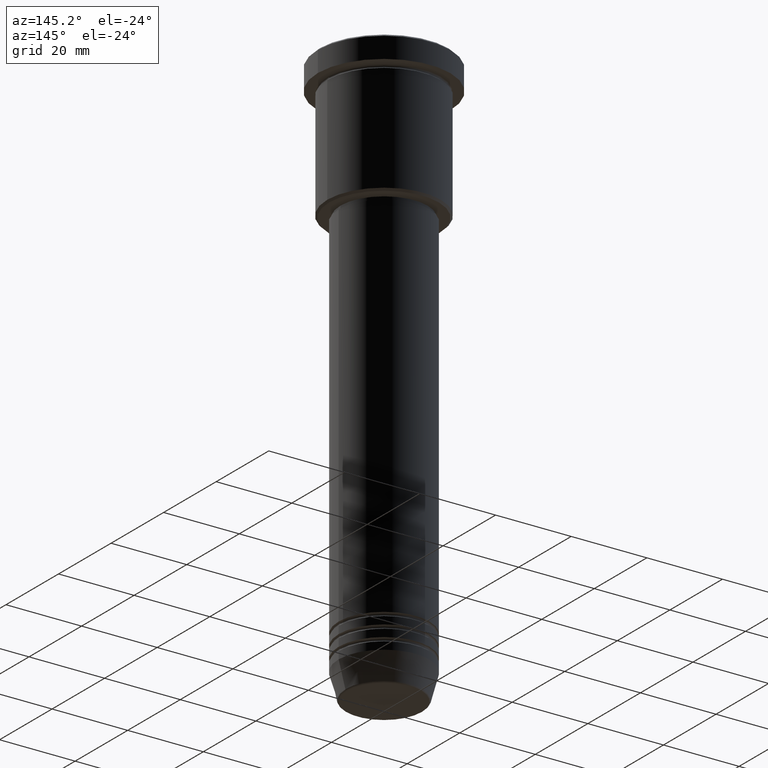
[diagram: clean part render]
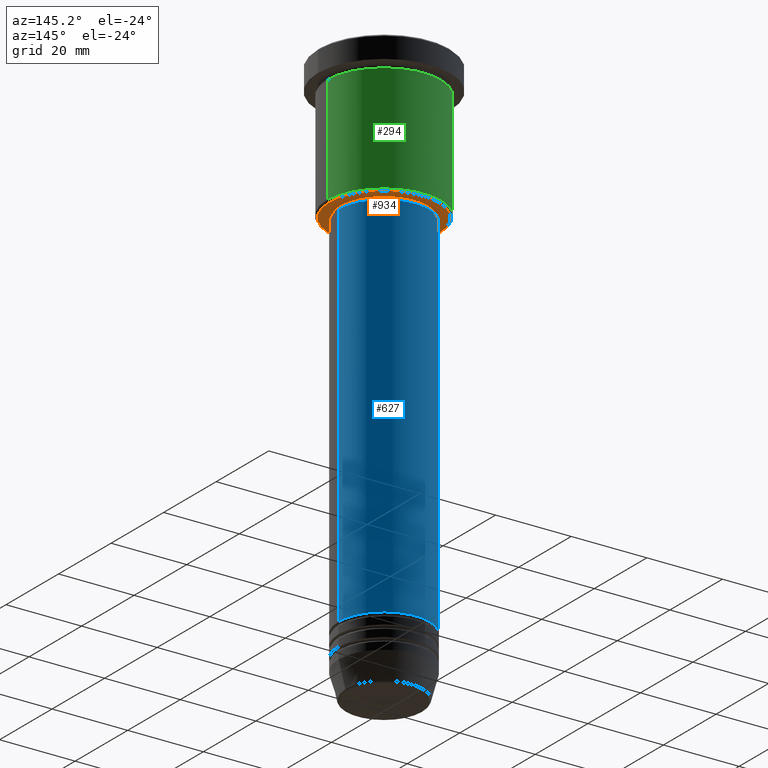
[diagram: same view with three faces highlighted in distinct colors, each labeled with its STEP entity id]
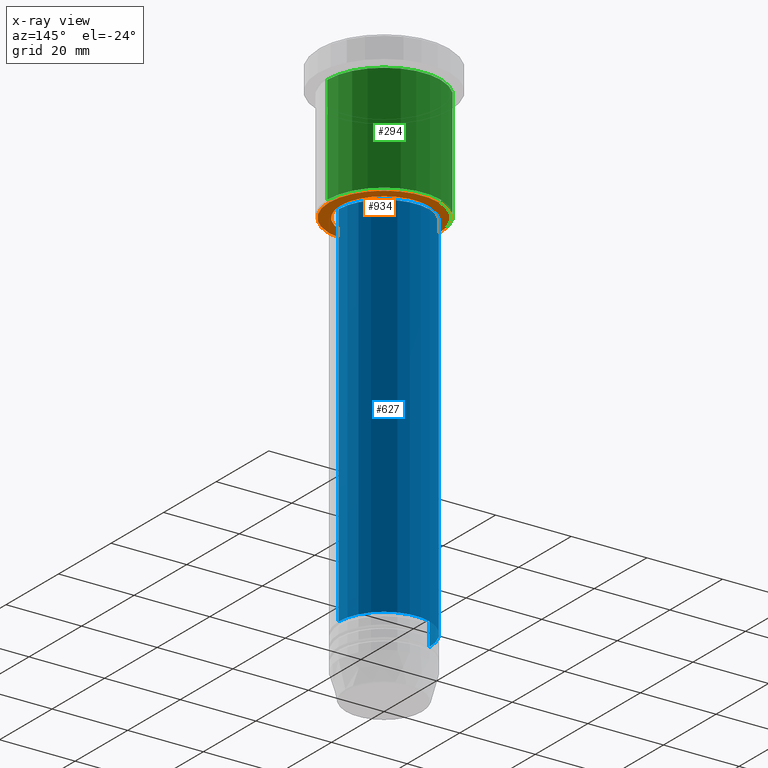
[diagram: x-ray of the same camera — body ghosted, the three highlighted faces saturated]
A machine part, auxiliary view with three faces highlighted in distinct colors.
The next image is the same camera in x-ray (body ghosted, the three faces saturated) — at least one of them is partly hidden behind the body in this view.
Their STEP definitions:

[orange] entity #934 — the highlighted planar face has unit normal (0, 0, -1).
#31 = DIRECTION ( 'NONE',  ( 0.000000000000000000, 0.000000000000000000, -1.000000000000000000 ) ) ;
#90 = AXIS2_PLACEMENT_3D ( 'NONE', #877, #576, #124 ) ;
#94 = DIRECTION ( 'NONE',  ( -1.000000000000000000, 0.000000000000000000, -0.000000000000000000 ) ) ;
#115 = FACE_BOUND ( 'NONE', #749, .T. ) ;
#124 = DIRECTION ( 'NONE',  ( -1.000000000000000000, 0.000000000000000000, 0.000000000000000000 ) ) ;
#128 = EDGE_CURVE ( 'NONE', #289, #882, #311, .T. ) ;
#139 = AXIS2_PLACEMENT_3D ( 'NONE', #906, #251, #628 ) ;
#169 = DIRECTION ( 'NONE',  ( 1.000000000000000000, 0.000000000000000000, 0.000000000000000000 ) ) ;
#197 = CIRCLE ( 'NONE', #90, 14.49999999999998401 ) ;
#232 = AXIS2_PLACEMENT_3D ( 'NONE', #409, #767, #507 ) ;
#251 = DIRECTION ( 'NONE',  ( 0.000000000000000000, 0.000000000000000000, -1.000000000000000000 ) ) ;
#257 = EDGE_CURVE ( 'NONE', #882, #289, #503, .T. ) ;
#289 = VERTEX_POINT ( 'NONE', #427 ) ;
#311 = CIRCLE ( 'NONE', #232, 11.50000000000000000 ) ;
#325 = ORIENTED_EDGE ( 'NONE', *, *, #733, .T. ) ;
#332 = VERTEX_POINT ( 'NONE', #903 ) ;
#364 = CARTESIAN_POINT ( 'NONE',  ( -11.50000000000000000, 1.408343819019456176E-15, -36.00000000000000711 ) ) ;
#409 = CARTESIAN_POINT ( 'NONE',  ( 0.000000000000000000, 0.000000000000000000, -36.00000000000000711 ) ) ;
#423 = AXIS2_PLACEMENT_3D ( 'NONE', #847, #31, #94 ) ;
#427 = CARTESIAN_POINT ( 'NONE',  ( 11.50000000000000000, 0.000000000000000000, -36.00000000000000711 ) ) ;
#454 = ORIENTED_EDGE ( 'NONE', *, *, #257, .T. ) ;
#497 = CIRCLE ( 'NONE', #139, 14.49999999999998401 ) ;
#503 = CIRCLE ( 'NONE', #540, 11.50000000000000000 ) ;
#507 = DIRECTION ( 'NONE',  ( 1.000000000000000000, 0.000000000000000000, 0.000000000000000000 ) ) ;
#540 = AXIS2_PLACEMENT_3D ( 'NONE', #1168, #982, #169 ) ;
#541 = PLANE ( 'NONE',  #423 ) ;
#576 = DIRECTION ( 'NONE',  ( 0.000000000000000000, 0.000000000000000000, -1.000000000000000000 ) ) ;
#628 = DIRECTION ( 'NONE',  ( -1.000000000000000000, 0.000000000000000000, 0.000000000000000000 ) ) ;
#645 = EDGE_CURVE ( 'NONE', #332, #880, #197, .T. ) ;
#651 = ORIENTED_EDGE ( 'NONE', *, *, #128, .T. ) ;
#712 = ORIENTED_EDGE ( 'NONE', *, *, #645, .T. ) ;
#733 = EDGE_CURVE ( 'NONE', #880, #332, #497, .T. ) ;
#749 = EDGE_LOOP ( 'NONE', ( #651, #454 ) ) ;
#767 = DIRECTION ( 'NONE',  ( -0.000000000000000000, -0.000000000000000000, 1.000000000000000000 ) ) ;
#847 = CARTESIAN_POINT ( 'NONE',  ( 0.000000000000000000, 15.00000000000000000, -36.00000000000000711 ) ) ;
#877 = CARTESIAN_POINT ( 'NONE',  ( 0.000000000000000000, 0.000000000000000000, -36.00000000000000711 ) ) ;
#880 = VERTEX_POINT ( 'NONE', #1016 ) ;
#882 = VERTEX_POINT ( 'NONE', #364 ) ;
#903 = CARTESIAN_POINT ( 'NONE',  ( -14.49999999999998401, 1.806354028742345013E-15, -36.00000000000000711 ) ) ;
#906 = CARTESIAN_POINT ( 'NONE',  ( 0.000000000000000000, 0.000000000000000000, -36.00000000000000711 ) ) ;
#934 = ADVANCED_FACE ( 'NONE', ( #938, #115 ), #541, .T. ) ;
#938 = FACE_OUTER_BOUND ( 'NONE', #983, .T. ) ;
#982 = DIRECTION ( 'NONE',  ( -0.000000000000000000, -0.000000000000000000, 1.000000000000000000 ) ) ;
#983 = EDGE_LOOP ( 'NONE', ( #325, #712 ) ) ;
#1016 = CARTESIAN_POINT ( 'NONE',  ( 14.49999999999998401, 0.000000000000000000, -36.00000000000000711 ) ) ;
#1168 = CARTESIAN_POINT ( 'NONE',  ( 0.000000000000000000, 0.000000000000000000, -36.00000000000000711 ) ) ;

[blue] entity #627 — the highlighted cylindrical surface (partial cylindrical patch) has radius 12 mm, axis along (-0, -0, 1).
#5 = CARTESIAN_POINT ( 'NONE',  ( -12.00000000000000000, 1.469576158976823947E-15, -134.9999999999999716 ) ) ;
#37 = DIRECTION ( 'NONE',  ( -0.000000000000000000, -0.000000000000000000, 1.000000000000000000 ) ) ;
#121 = LINE ( 'NONE', #1045, #442 ) ;
#127 = DIRECTION ( 'NONE',  ( -0.000000000000000000, -0.000000000000000000, 1.000000000000000000 ) ) ;
#154 = DIRECTION ( 'NONE',  ( -0.000000000000000000, -0.000000000000000000, 1.000000000000000000 ) ) ;
#176 = DIRECTION ( 'NONE',  ( 1.000000000000000000, 0.000000000000000000, 0.000000000000000000 ) ) ;
#207 = DIRECTION ( 'NONE',  ( 1.000000000000000000, 0.000000000000000000, 0.000000000000000000 ) ) ;
#224 = ORIENTED_EDGE ( 'NONE', *, *, #917, .F. ) ;
#247 = VERTEX_POINT ( 'NONE', #998 ) ;
#267 = AXIS2_PLACEMENT_3D ( 'NONE', #693, #154, #866 ) ;
#307 = AXIS2_PLACEMENT_3D ( 'NONE', #582, #37, #176 ) ;
#313 = CARTESIAN_POINT ( 'NONE',  ( 0.000000000000000000, 0.000000000000000000, 0.000000000000000000 ) ) ;
#330 = CARTESIAN_POINT ( 'NONE',  ( -12.00000000000000000, 1.469576158976823947E-15, 0.000000000000000000 ) ) ;
#398 = CYLINDRICAL_SURFACE ( 'NONE', #1163, 12.00000000000000000 ) ;
#442 = VECTOR ( 'NONE', #127, 1000.000000000000000 ) ;
#493 = ORIENTED_EDGE ( 'NONE', *, *, #879, .F. ) ;
#505 = FACE_OUTER_BOUND ( 'NONE', #508, .T. ) ;
#508 = EDGE_LOOP ( 'NONE', ( #1164, #662, #224, #493 ) ) ;
#555 = CIRCLE ( 'NONE', #307, 12.00000000000000000 ) ;
#582 = CARTESIAN_POINT ( 'NONE',  ( 0.000000000000000000, 0.000000000000000000, -37.00000000000001421 ) ) ;
#627 = ADVANCED_FACE ( 'NONE', ( #505 ), #398, .T. ) ;
#662 = ORIENTED_EDGE ( 'NONE', *, *, #792, .T. ) ;
#684 = DIRECTION ( 'NONE',  ( -0.000000000000000000, -0.000000000000000000, 1.000000000000000000 ) ) ;
#693 = CARTESIAN_POINT ( 'NONE',  ( 0.000000000000000000, 0.000000000000000000, -134.9999999999999716 ) ) ;
#723 = DIRECTION ( 'NONE',  ( -0.000000000000000000, -0.000000000000000000, 1.000000000000000000 ) ) ;
#792 = EDGE_CURVE ( 'NONE', #948, #886, #997, .T. ) ;
#795 = CIRCLE ( 'NONE', #267, 12.00000000000000000 ) ;
#866 = DIRECTION ( 'NONE',  ( 1.000000000000000000, 0.000000000000000000, 0.000000000000000000 ) ) ;
#879 = EDGE_CURVE ( 'NONE', #247, #979, #121, .T. ) ;
#886 = VERTEX_POINT ( 'NONE', #914 ) ;
#914 = CARTESIAN_POINT ( 'NONE',  ( -12.00000000000000000, 1.469576158976823947E-15, -37.00000000000001421 ) ) ;
#917 = EDGE_CURVE ( 'NONE', #979, #886, #555, .T. ) ;
#945 = VECTOR ( 'NONE', #723, 1000.000000000000000 ) ;
#948 = VERTEX_POINT ( 'NONE', #5 ) ;
#979 = VERTEX_POINT ( 'NONE', #1080 ) ;
#997 = LINE ( 'NONE', #330, #945 ) ;
#998 = CARTESIAN_POINT ( 'NONE',  ( 12.00000000000000000, 0.000000000000000000, -134.9999999999999716 ) ) ;
#1035 = EDGE_CURVE ( 'NONE', #247, #948, #795, .T. ) ;
#1045 = CARTESIAN_POINT ( 'NONE',  ( 12.00000000000000000, 0.000000000000000000, 0.000000000000000000 ) ) ;
#1080 = CARTESIAN_POINT ( 'NONE',  ( 12.00000000000000000, 0.000000000000000000, -37.00000000000001421 ) ) ;
#1163 = AXIS2_PLACEMENT_3D ( 'NONE', #313, #684, #207 ) ;
#1164 = ORIENTED_EDGE ( 'NONE', *, *, #1035, .T. ) ;

[green] entity #294 — the highlighted cylindrical surface (partial cylindrical patch) has radius 15 mm, axis along (-0, -0, 1).
#51 = AXIS2_PLACEMENT_3D ( 'NONE', #802, #978, #73 ) ;
#73 = DIRECTION ( 'NONE',  ( 1.000000000000000000, 0.000000000000000000, 0.000000000000000000 ) ) ;
#81 = EDGE_CURVE ( 'NONE', #797, #898, #789, .T. ) ;
#85 = DIRECTION ( 'NONE',  ( -0.000000000000000000, -0.000000000000000000, 1.000000000000000000 ) ) ;
#149 = CARTESIAN_POINT ( 'NONE',  ( 15.00000000000000000, 0.000000000000000000, 0.000000000000000000 ) ) ;
#185 = EDGE_LOOP ( 'NONE', ( #1073, #421, #585, #510 ) ) ;
#216 = AXIS2_PLACEMENT_3D ( 'NONE', #793, #85, #623 ) ;
#219 = EDGE_CURVE ( 'NONE', #641, #898, #1089, .T. ) ;
#233 = CIRCLE ( 'NONE', #216, 15.00000000000000000 ) ;
#294 = ADVANCED_FACE ( 'NONE', ( #890 ), #438, .T. ) ;
#346 = VECTOR ( 'NONE', #791, 1000.000000000000000 ) ;
#350 = DIRECTION ( 'NONE',  ( 1.000000000000000000, 0.000000000000000000, 0.000000000000000000 ) ) ;
#397 = LINE ( 'NONE', #149, #346 ) ;
#420 = DIRECTION ( 'NONE',  ( -0.000000000000000000, -0.000000000000000000, 1.000000000000000000 ) ) ;
#421 = ORIENTED_EDGE ( 'NONE', *, *, #81, .T. ) ;
#438 = CYLINDRICAL_SURFACE ( 'NONE', #819, 15.00000000000000000 ) ;
#510 = ORIENTED_EDGE ( 'NONE', *, *, #1098, .F. ) ;
#585 = ORIENTED_EDGE ( 'NONE', *, *, #219, .F. ) ;
#590 = CARTESIAN_POINT ( 'NONE',  ( 15.00000000000000000, 0.000000000000000000, -6.999999999999995559 ) ) ;
#623 = DIRECTION ( 'NONE',  ( -1.000000000000000000, 0.000000000000000000, 0.000000000000000000 ) ) ;
#641 = VERTEX_POINT ( 'NONE', #590 ) ;
#665 = EDGE_CURVE ( 'NONE', #1101, #797, #233, .T. ) ;
#691 = CARTESIAN_POINT ( 'NONE',  ( -15.00000000000000000, 1.836970198721029589E-15, 0.000000000000000000 ) ) ;
#701 = CARTESIAN_POINT ( 'NONE',  ( 15.00000000000000000, 0.000000000000000000, -35.49999999999997868 ) ) ;
#728 = CARTESIAN_POINT ( 'NONE',  ( 0.000000000000000000, 0.000000000000000000, 0.000000000000000000 ) ) ;
#740 = CARTESIAN_POINT ( 'NONE',  ( -15.00000000000000000, 1.836970198721029589E-15, -6.999999999999995559 ) ) ;
#789 = LINE ( 'NONE', #691, #1027 ) ;
#791 = DIRECTION ( 'NONE',  ( -0.000000000000000000, -0.000000000000000000, 1.000000000000000000 ) ) ;
#793 = CARTESIAN_POINT ( 'NONE',  ( 0.000000000000000000, 0.000000000000000000, -35.49999999999997868 ) ) ;
#797 = VERTEX_POINT ( 'NONE', #902 ) ;
#802 = CARTESIAN_POINT ( 'NONE',  ( 0.000000000000000000, 0.000000000000000000, -6.999999999999995559 ) ) ;
#819 = AXIS2_PLACEMENT_3D ( 'NONE', #728, #420, #350 ) ;
#864 = DIRECTION ( 'NONE',  ( -0.000000000000000000, -0.000000000000000000, 1.000000000000000000 ) ) ;
#890 = FACE_OUTER_BOUND ( 'NONE', #185, .T. ) ;
#898 = VERTEX_POINT ( 'NONE', #740 ) ;
#902 = CARTESIAN_POINT ( 'NONE',  ( -15.00000000000000000, 1.836970198721029589E-15, -35.49999999999997868 ) ) ;
#978 = DIRECTION ( 'NONE',  ( -0.000000000000000000, -0.000000000000000000, 1.000000000000000000 ) ) ;
#1027 = VECTOR ( 'NONE', #864, 1000.000000000000000 ) ;
#1073 = ORIENTED_EDGE ( 'NONE', *, *, #665, .T. ) ;
#1089 = CIRCLE ( 'NONE', #51, 15.00000000000000000 ) ;
#1098 = EDGE_CURVE ( 'NONE', #1101, #641, #397, .T. ) ;
#1101 = VERTEX_POINT ( 'NONE', #701 ) ;